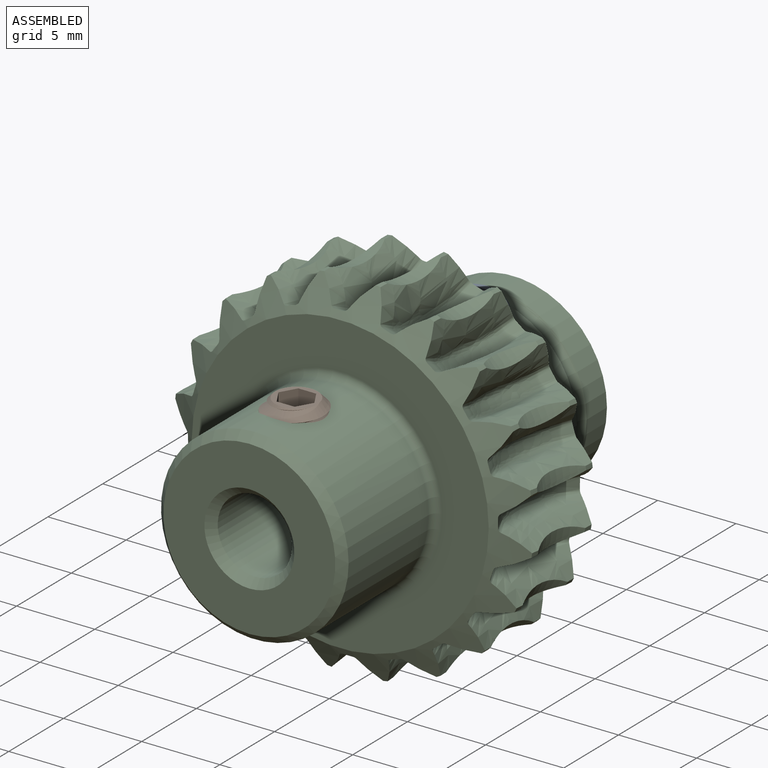
[diagram: assembled view]
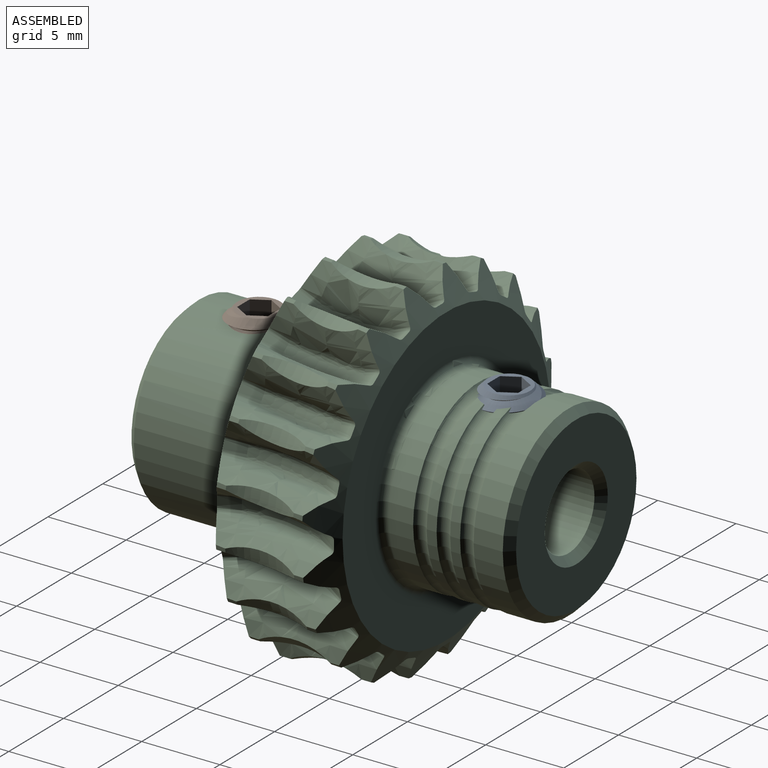
[diagram: assembled view, second angle]
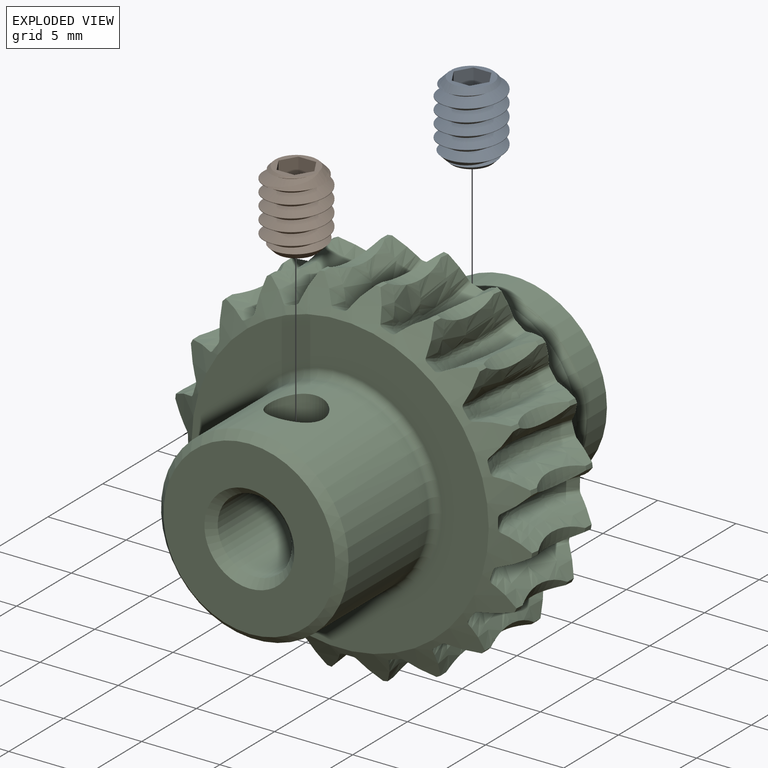
[diagram: exploded view]
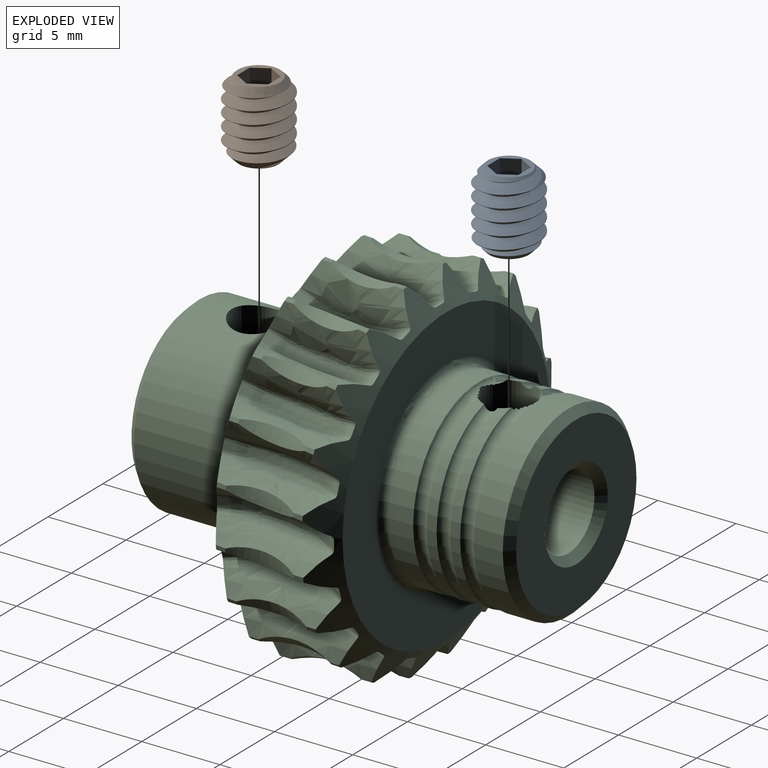
[diagram: exploded view, second angle]
ASSEMBLY  parts=3 mates=2
PART A: 15 faces, bbox 4x4x5.7 mm
  f0: cone r=1.02mm half-angle=60deg, axis (0,0,-1), area 3.7mm2, adj f1
  f1: plane 2.54x2.54mm, normal (0,0,-1), area 1.8mm2, adj f0,f3
  f2: cylinder r=1.99mm len=3.99mm, axis (0,0,-1), area 1.6mm2, adj f3,f4,f5,f6
  f3: cone r=1.99mm half-angle=45deg, axis (0,0,1), area 5.4mm2, adj f1,f2,f4,f6
  f4: bspline ~5.27x4.04mm, area 40.4mm2, adj f2,f3,f5,f6,f13
  f5: cone r=1.99mm half-angle=45deg, axis (0,0,-1), area 4.5mm2, adj f2,f4,f6,f13
  f6: bspline ~5.27x4.04mm, area 40.5mm2, adj f2,f3,f4,f5,f13
  f7: plane 1.78x0.99mm, normal (-0.5,-0.87,0), area 2mm2, adj f9,f10,f11,f13
  f8: plane 1.78x1.15mm, normal (1,0,0), area 2mm2, adj f9,f11,f12,f13
  f9: plane 1.78x0.99mm, normal (0.5,-0.87,0), area 2mm2, adj f7,f8,f11,f13
  f10: plane 1.78x1.15mm, normal (-1,0,0), area 2mm2, adj f7,f11,f13,f14
  f11: plane 2.29x1.98mm, normal (0,0,1), area 3.4mm2, adj f7,f8,f9,f10,f12,f14
  f12: plane 1.78x0.99mm, normal (0.5,0.87,0), area 2mm2, adj f8,f11,f13,f14
  f13: plane 2.72x2.71mm, normal (0,0,1), area 2.4mm2, adj f4,f5,f6,f7,f8,f9,f10,f12
  f14: plane 1.78x0.99mm, normal (-0.5,0.87,0), area 2mm2, adj f10,f11,f12,f13
PART B: same geometry as A
PART C: 109 faces, bbox 25x24.8x25 mm
  f0: torus R=6.25mm, axis (0,-1,0), area 18.2mm2, adj f9,f15,f16,f22
  f1: torus R=6.5mm, axis (0,1,0), area 15.3mm2, adj f12,f23,f26
  f2: torus R=6.25mm, axis (0,-1,0), area 18.2mm2, adj f9,f14,f18,f24
  f3: torus R=6.25mm, axis (0,-1,0), area 7.8mm2, adj f4,f9,f15,f18
  f4: torus R=6.25mm, axis (0,-1,0), area 19.2mm2, adj f3,f15,f18,f25
  f5: torus R=6.5mm, axis (0,-1,0), area 15.3mm2, adj f16,f27,f28
  f6: cylinder r=2.38mm len=23.6mm, axis (0,-1,0), area 331.9mm2, adj f7,f8,f9,f10
  f7: cone r=2.88mm half-angle=45deg, axis (0,1,0), area 11.7mm2, adj f6,f20
  f8: cone r=2.88mm half-angle=45deg, axis (0,-1,0), area 11.7mm2, adj f6,f21
  f9: cylinder r=1.73mm len=4.21mm, axis (0,0,-1), area 41.1mm2, adj f0,f2,f3,f6,f15,f18,f25
  f10: cylinder r=1.73mm len=3.63mm, axis (0,0,-1), area 39.3mm2, adj f6,f12
  f11: cone r=6mm half-angle=45deg, axis (0,-1,0), area 25.5mm2, adj f14,f20
  f12: cylinder r=6mm len=12mm, axis (0,-1,0), area 265.7mm2, adj f1,f10,f13,f23
  f13: cone r=6mm half-angle=45deg, axis (0,1,0), area 25.5mm2, adj f12,f21
  f14: cylinder r=6mm len=12mm, axis (0,-1,0), area 70.4mm2, adj f2,f11,f24
  f15: cylinder r=6mm len=12mm, axis (0,-1,0), area 22mm2, adj f0,f3,f4,f9,f22,f25
  f16: cylinder r=6mm len=12mm, axis (0,-1,0), area 59.1mm2, adj f0,f5,f22,f27
  f17: cone r=11.5mm half-angle=58.4deg, axis (0,1,0), area 70.1mm2, adj f26,f29,f30,f31,f32,f33,f34,f35
  f18: cylinder r=6mm len=12mm, axis (0,-1,0), area 22mm2, adj f2,f3,f4,f9,f24,f25
  f19: cone r=11.5mm half-angle=58.4deg, axis (0,-1,0), area 85.2mm2, adj f28,f29,f31,f33,f35,f37,f39,f41
  f20: plane 11x11mm, normal (0,1,0), area 69.1mm2, adj f7,f11
  f21: plane 11x11mm, normal (0,-1,0), area 69.1mm2, adj f8,f13
  f22: torus R=6.25mm, axis (0,-1,0), area 19.2mm2, adj f0,f15,f16
  f23: torus R=6.5mm, axis (0,1,0), area 15.3mm2, adj f1,f12,f26
  f24: torus R=6.25mm, axis (0,-1,0), area 19.2mm2, adj f2,f14,f18
  f25: torus R=6.25mm, axis (0,-1,0), area 7.8mm2, adj f4,f9,f15,f18
  f26: plane 19x19mm, normal (0,-1,0), area 150.8mm2, adj f1,f17,f23
  f27: torus R=6.5mm, axis (0,-1,0), area 15.3mm2, adj f5,f16,f28
  f28: plane 19.19x19.19mm, normal (0,1,0), area 150.9mm2, adj f5,f19,f27
  f29: bspline ~8.7x5.68mm, area 37.2mm2, adj f17,f19,f30,f68,f69,f70,f71,f72
  f30: cylinder r=11.5mm len=0.59mm, axis (0,-1,0), area 0.2mm2, adj f17,f29,f31,f69
  f31: bspline ~8.32x5.08mm, area 36.8mm2, adj f17,f19,f30,f32,f69,f70,f73,f74
  f32: cylinder r=11.5mm len=0.59mm, axis (0,-1,0), area 0.2mm2, adj f17,f31,f33,f73
  f33: bspline ~8.32x4.36mm, area 36.8mm2, adj f17,f19,f32,f34,f73,f74,f75,f76
  f34: cylinder r=11.5mm len=0.59mm, axis (0,-1,0), area 0.2mm2, adj f17,f33,f35,f75
  f35: bspline ~8.32x4.37mm, area 36.8mm2, adj f17,f19,f34,f36,f75,f76,f77,f78
  f36: cylinder r=11.5mm len=0.59mm, axis (0,-1,0), area 0.2mm2, adj f17,f35,f37,f77
  f37: bspline ~8.32x5.08mm, area 36.8mm2, adj f17,f19,f36,f38,f77,f78,f79,f80
  f38: cylinder r=11.5mm len=0.59mm, axis (0,-1,0), area 0.2mm2, adj f17,f37,f39,f79
  f39: bspline ~8.32x5.34mm, area 36.8mm2, adj f17,f19,f38,f40,f79,f80,f81,f82
  f40: cylinder r=11.5mm len=0.59mm, axis (0,-1,0), area 0.2mm2, adj f17,f39,f41,f81
  f41: bspline ~8.32x5.08mm, area 36.8mm2, adj f17,f19,f40,f42,f81,f82,f83,f84
  f42: cylinder r=11.5mm len=0.59mm, axis (0,-1,0), area 0.2mm2, adj f17,f41,f43,f83
  f43: bspline ~8.32x4.36mm, area 36.8mm2, adj f17,f19,f42,f44,f83,f84,f85,f86
  f44: cylinder r=11.5mm len=0.59mm, axis (0,-1,0), area 0.2mm2, adj f17,f43,f45,f85
  f45: bspline ~8.32x4.37mm, area 36.8mm2, adj f17,f19,f44,f46,f85,f86,f87,f88
  f46: cylinder r=11.5mm len=0.59mm, axis (0,-1,0), area 0.2mm2, adj f17,f45,f47,f87
  f47: bspline ~8.32x5.08mm, area 36.8mm2, adj f17,f19,f46,f48,f87,f88,f89,f90
  f48: cylinder r=11.5mm len=0.59mm, axis (0,-1,0), area 0.2mm2, adj f17,f47,f49,f89
  f49: bspline ~8.7x5.68mm, area 37.2mm2, adj f17,f19,f48,f50,f89,f90,f91,f92
  f50: cylinder r=11.5mm len=0.59mm, axis (0,-1,0), area 0.2mm2, adj f17,f49,f51,f91
  f51: bspline ~8.32x5.08mm, area 36.8mm2, adj f17,f19,f50,f52,f91,f92,f93,f94
  f52: cylinder r=11.5mm len=0.59mm, axis (0,-1,0), area 0.2mm2, adj f17,f51,f53,f93
  f53: bspline ~8.32x4.36mm, area 36.8mm2, adj f17,f19,f52,f54,f93,f94,f95,f96
  f54: cylinder r=11.5mm len=0.59mm, axis (0,-1,0), area 0.2mm2, adj f17,f53,f55,f95
  f55: bspline ~8.32x4.37mm, area 36.8mm2, adj f17,f19,f54,f56,f95,f96,f97,f98
  f56: cylinder r=11.5mm len=0.59mm, axis (0,-1,0), area 0.2mm2, adj f17,f55,f57,f97
  f57: bspline ~8.32x5.08mm, area 36.8mm2, adj f17,f19,f56,f58,f97,f98,f99,f100
  f58: cylinder r=11.5mm len=0.59mm, axis (0,-1,0), area 0.2mm2, adj f17,f57,f59,f99
  f59: bspline ~8.32x5.34mm, area 36.8mm2, adj f17,f19,f58,f60,f99,f100,f101,f102
  f60: cylinder r=11.5mm len=0.59mm, axis (0,-1,0), area 0.2mm2, adj f17,f59,f61,f101
  f61: bspline ~8.32x5.08mm, area 36.8mm2, adj f17,f19,f60,f62,f101,f102,f103,f104
  f62: cylinder r=11.5mm len=0.59mm, axis (0,-1,0), area 0.2mm2, adj f17,f61,f63,f103
  f63: bspline ~8.32x4.36mm, area 36.8mm2, adj f17,f19,f62,f64,f103,f104,f105,f106
  f64: cylinder r=11.5mm len=0.59mm, axis (0,-1,0), area 0.2mm2, adj f17,f63,f65,f105
  f65: bspline ~8.32x4.37mm, area 36.8mm2, adj f17,f19,f64,f66,f105,f106,f107,f108
  f66: cylinder r=11.5mm len=0.59mm, axis (0,-1,0), area 0.2mm2, adj f17,f65,f67,f107
  f67: bspline ~8.32x5.08mm, area 36.8mm2, adj f17,f19,f66,f68,f71,f72,f107,f108
  f68: cylinder r=11.5mm len=0.59mm, axis (0,-1,0), area 0.2mm2, adj f17,f29,f67,f72
  f69: torus R=16mm, axis (0,-1,0), area 3.1mm2, adj f29,f30,f31,f70
  f70: cylinder r=11.5mm len=0.59mm, axis (0,-1,0), area 0.2mm2, adj f19,f29,f31,f69
  f71: cylinder r=11.5mm len=0.59mm, axis (0,-1,0), area 0.2mm2, adj f19,f29,f67,f72
  f72: torus R=16mm, axis (0,-1,0), area 3.1mm2, adj f29,f67,f68,f71
  f73: torus R=16mm, axis (0,-1,0), area 3.1mm2, adj f31,f32,f33,f74
  f74: cylinder r=11.5mm len=0.59mm, axis (0,-1,0), area 0.2mm2, adj f19,f31,f33,f73
  f75: torus R=16mm, axis (0,-1,0), area 3.1mm2, adj f33,f34,f35,f76
  f76: cylinder r=11.5mm len=0.59mm, axis (0,-1,0), area 0.2mm2, adj f19,f33,f35,f75
  f77: torus R=16mm, axis (0,-1,0), area 3.1mm2, adj f35,f36,f37,f78
  f78: cylinder r=11.5mm len=0.59mm, axis (0,-1,0), area 0.2mm2, adj f19,f35,f37,f77
  f79: torus R=16mm, axis (0,-1,0), area 3.1mm2, adj f37,f38,f39,f80
  f80: cylinder r=11.5mm len=0.59mm, axis (0,-1,0), area 0.2mm2, adj f19,f37,f39,f79
  f81: torus R=16mm, axis (0,-1,0), area 3.1mm2, adj f39,f40,f41,f82
  f82: cylinder r=11.5mm len=0.59mm, axis (0,-1,0), area 0.2mm2, adj f19,f39,f41,f81
  f83: torus R=16mm, axis (0,-1,0), area 3.1mm2, adj f41,f42,f43,f84
  f84: cylinder r=11.5mm len=0.59mm, axis (0,-1,0), area 0.2mm2, adj f19,f41,f43,f83
  f85: torus R=16mm, axis (0,-1,0), area 3.1mm2, adj f43,f44,f45,f86
  f86: cylinder r=11.5mm len=0.59mm, axis (0,-1,0), area 0.2mm2, adj f19,f43,f45,f85
  f87: torus R=16mm, axis (0,-1,0), area 3.1mm2, adj f45,f46,f47,f88
  f88: cylinder r=11.5mm len=0.59mm, axis (0,-1,0), area 0.2mm2, adj f19,f45,f47,f87
  f89: torus R=16mm, axis (0,-1,0), area 3.1mm2, adj f47,f48,f49,f90
  f90: cylinder r=11.5mm len=0.59mm, axis (0,-1,0), area 0.2mm2, adj f19,f47,f49,f89
  f91: torus R=16mm, axis (0,-1,0), area 3.1mm2, adj f49,f50,f51,f92
  f92: cylinder r=11.5mm len=0.59mm, axis (0,-1,0), area 0.2mm2, adj f19,f49,f51,f91
  f93: torus R=16mm, axis (0,-1,0), area 3.1mm2, adj f51,f52,f53,f94
  f94: cylinder r=11.5mm len=0.59mm, axis (0,-1,0), area 0.2mm2, adj f19,f51,f53,f93
  f95: torus R=16mm, axis (0,-1,0), area 3.1mm2, adj f53,f54,f55,f96
  f96: cylinder r=11.5mm len=0.59mm, axis (0,-1,0), area 0.2mm2, adj f19,f53,f55,f95
  f97: torus R=16mm, axis (0,-1,0), area 3.1mm2, adj f55,f56,f57,f98
  f98: cylinder r=11.5mm len=0.59mm, axis (0,-1,0), area 0.2mm2, adj f19,f55,f57,f97
  f99: torus R=16mm, axis (0,-1,0), area 3.1mm2, adj f57,f58,f59,f100
  f100: cylinder r=11.5mm len=0.59mm, axis (0,-1,0), area 0.2mm2, adj f19,f57,f59,f99
  f101: torus R=16mm, axis (0,-1,0), area 3.1mm2, adj f59,f60,f61,f102
  f102: cylinder r=11.5mm len=0.59mm, axis (0,-1,0), area 0.2mm2, adj f19,f59,f61,f101
  f103: torus R=16mm, axis (0,-1,0), area 3.1mm2, adj f61,f62,f63,f104
  f104: cylinder r=11.5mm len=0.59mm, axis (0,-1,0), area 0.2mm2, adj f19,f61,f63,f103
  f105: torus R=16mm, axis (0,-1,0), area 3.1mm2, adj f63,f64,f65,f106
  f106: cylinder r=11.5mm len=0.59mm, axis (0,-1,0), area 0.2mm2, adj f19,f63,f65,f105
  f107: torus R=16mm, axis (0,-1,0), area 3.1mm2, adj f65,f66,f67,f108
  f108: cylinder r=11.5mm len=0.59mm, axis (0,-1,0), area 0.2mm2, adj f19,f65,f67,f107
PLACE A rot(axis=(0,0,1),90deg) t=(0,8,1.61)mm
PLACE B rot(axis=(0,0,-1),90deg) t=(0,-8,1.76)mm
PLACE C at identity
MATE fastened A.f0 <-> C.f9  axis (0,0,1) through (0,8,6.37)mm
MATE fastened B.f0 <-> C.f10  axis (0,0,1) through (0,-8,6.53)mm
